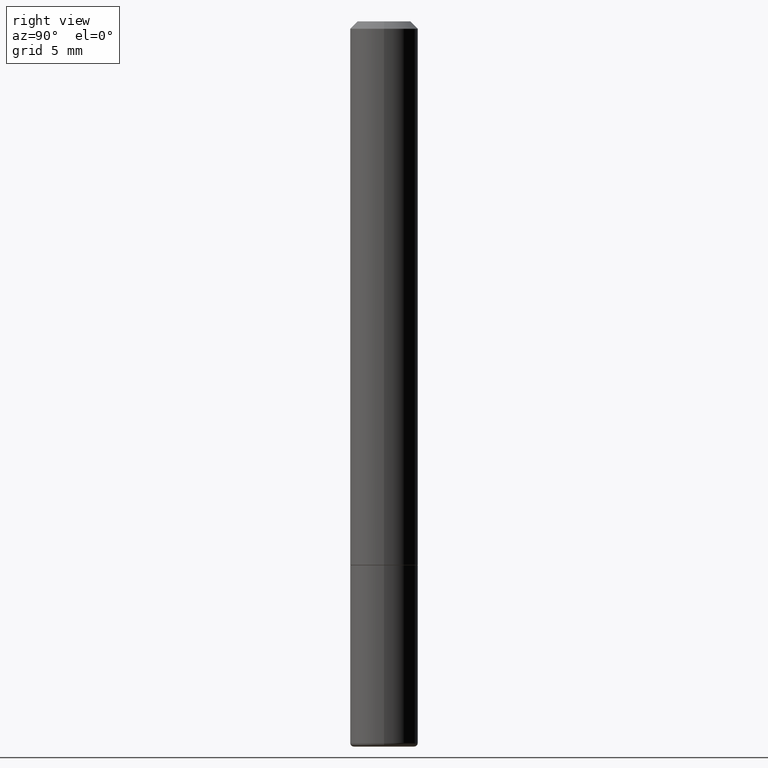
[diagram: clean part render]
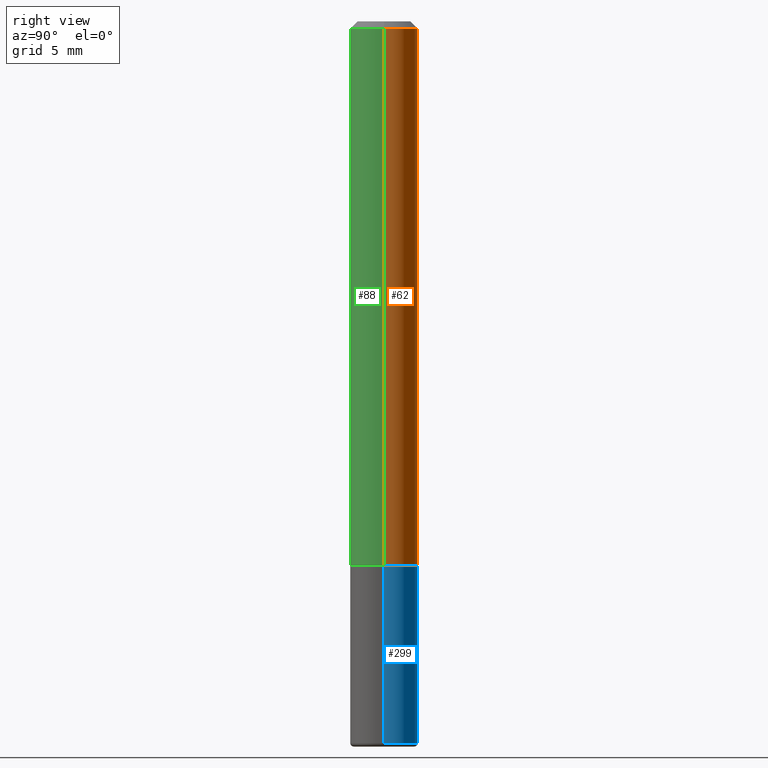
[diagram: same view with three faces highlighted in distinct colors, each labeled with its STEP entity id]
A machine part, right view with three faces highlighted in distinct colors.
Their STEP definitions:

[orange] entity #62 — the highlighted cylindrical surface (edge-blend (fillet) strip) has radius 2.3813 mm, axis along (-0, 0, 1).
#8 = VECTOR ( 'NONE', #153, 39.37007874015748143 ) ;
#15 = CARTESIAN_POINT ( 'NONE',  ( 0.09375000000000020817, -5.888383277958964251E-15, -1.498999999999999666 ) ) ;
#20 = DIRECTION ( 'NONE',  ( 1.000000000000000000, -6.982962677686265922E-15, 4.876176775795935793E-29 ) ) ;
#28 = LINE ( 'NONE', #354, #8 ) ;
#35 = CARTESIAN_POINT ( 'NONE',  ( -0.09375000000000001388, 5.848231242562245017E-16, -0.02000000000000001776 ) ) ;
#44 = CYLINDRICAL_SURFACE ( 'NONE', #286, 0.09375000000000011102 ) ;
#46 = AXIS2_PLACEMENT_3D ( 'NONE', #204, #304, #271 ) ;
#62 = ADVANCED_FACE ( 'NONE', ( #145 ), #44, .T. ) ;
#68 = VECTOR ( 'NONE', #99, 39.37007874015748143 ) ;
#71 = DIRECTION ( 'NONE',  ( 1.000000000000000000, -6.982962677686268288E-15, 0.000000000000000000 ) ) ;
#93 = VERTEX_POINT ( 'NONE', #15 ) ;
#99 = DIRECTION ( 'NONE',  ( -2.445468806185136877E-29, 3.491481338843145188E-15, 1.000000000000000000 ) ) ;
#107 = LINE ( 'NONE', #290, #68 ) ;
#128 = VERTEX_POINT ( 'NONE', #209 ) ;
#131 = ORIENTED_EDGE ( 'NONE', *, *, #364, .T. ) ;
#145 = FACE_OUTER_BOUND ( 'NONE', #330, .T. ) ;
#153 = DIRECTION ( 'NONE',  ( -2.445468806185136877E-29, 3.491481338843145188E-15, 1.000000000000000000 ) ) ;
#157 = ORIENTED_EDGE ( 'NONE', *, *, #413, .F. ) ;
#162 = CIRCLE ( 'NONE', #46, 0.09375000000000001388 ) ;
#203 = VERTEX_POINT ( 'NONE', #35 ) ;
#204 = CARTESIAN_POINT ( 'NONE',  ( 4.890937612370276662E-31, -6.982962677686296539E-17, -0.02000000000000001776 ) ) ;
#209 = CARTESIAN_POINT ( 'NONE',  ( 0.09375000000000001388, -7.130013140679441850E-16, -0.02000000000000001776 ) ) ;
#226 = EDGE_CURVE ( 'NONE', #93, #128, #107, .T. ) ;
#239 = CIRCLE ( 'NONE', #311, 0.09375000000000020817 ) ;
#264 = ORIENTED_EDGE ( 'NONE', *, *, #283, .T. ) ;
#271 = DIRECTION ( 'NONE',  ( 1.000000000000000000, -6.982962677686265922E-15, 0.000000000000000000 ) ) ;
#274 = DIRECTION ( 'NONE',  ( -2.445468806185136597E-29, 3.491481338843145583E-15, 1.000000000000000000 ) ) ;
#283 = EDGE_CURVE ( 'NONE', #412, #203, #28, .T. ) ;
#286 = AXIS2_PLACEMENT_3D ( 'NONE', #318, #274, #20 ) ;
#290 = CARTESIAN_POINT ( 'NONE',  ( 0.09375000000000011102, -6.546527510330881944E-16, 4.571415727308695411E-30 ) ) ;
#304 = DIRECTION ( 'NONE',  ( -2.445468806185136597E-29, 3.491481338843145583E-15, 1.000000000000000000 ) ) ;
#311 = AXIS2_PLACEMENT_3D ( 'NONE', #331, #333, #71 ) ;
#318 = CARTESIAN_POINT ( 'NONE',  ( 0.000000000000000000, 0.000000000000000000, 0.000000000000000000 ) ) ;
#321 = ORIENTED_EDGE ( 'NONE', *, *, #226, .F. ) ;
#329 = CARTESIAN_POINT ( 'NONE',  ( -0.09375000000000020817, -1.985646262076270971E-15, -1.498999999999999666 ) ) ;
#330 = EDGE_LOOP ( 'NONE', ( #131, #264, #157, #321 ) ) ;
#331 = CARTESIAN_POINT ( 'NONE',  ( 3.665757740471518732E-29, -5.233730526925875170E-15, -1.498999999999999666 ) ) ;
#333 = DIRECTION ( 'NONE',  ( -2.445468806185136597E-29, 3.491481338843145583E-15, 1.000000000000000000 ) ) ;
#354 = CARTESIAN_POINT ( 'NONE',  ( -0.09375000000000011102, 6.661338147750947131E-16, -4.611501647113979600E-30 ) ) ;
#364 = EDGE_CURVE ( 'NONE', #93, #412, #239, .T. ) ;
#412 = VERTEX_POINT ( 'NONE', #329 ) ;
#413 = EDGE_CURVE ( 'NONE', #128, #203, #162, .T. ) ;

[blue] entity #299 — the highlighted cylindrical surface (edge-blend (fillet) strip) has radius 2.3813 mm, axis along (-0, 0, 1).
#9 = CARTESIAN_POINT ( 'NONE',  ( 0.09375000000000002776, -6.546527510330876027E-16, 4.571415727308691207E-30 ) ) ;
#18 = AXIS2_PLACEMENT_3D ( 'NONE', #383, #350, #219 ) ;
#63 = VERTEX_POINT ( 'NONE', #101 ) ;
#70 = CARTESIAN_POINT ( 'NONE',  ( 3.668203209277704335E-29, -5.237222008264717388E-15, -1.499999999999999778 ) ) ;
#89 = ORIENTED_EDGE ( 'NONE', *, *, #399, .F. ) ;
#101 = CARTESIAN_POINT ( 'NONE',  ( 0.09374999999999998612, -7.602700615330948598E-15, -1.989999999999999991 ) ) ;
#111 = CIRCLE ( 'NONE', #358, 0.09375000000000001388 ) ;
#119 = ORIENTED_EDGE ( 'NONE', *, *, #305, .T. ) ;
#122 = EDGE_CURVE ( 'NONE', #63, #237, #294, .T. ) ;
#126 = VECTOR ( 'NONE', #186, 39.37007874015748143 ) ;
#137 = EDGE_CURVE ( 'NONE', #352, #298, #111, .T. ) ;
#148 = EDGE_LOOP ( 'NONE', ( #160, #119, #199, #89 ) ) ;
#150 = FACE_OUTER_BOUND ( 'NONE', #148, .T. ) ;
#152 = LINE ( 'NONE', #381, #126 ) ;
#155 = AXIS2_PLACEMENT_3D ( 'NONE', #347, #242, #370 ) ;
#160 = ORIENTED_EDGE ( 'NONE', *, *, #122, .T. ) ;
#186 = DIRECTION ( 'NONE',  ( -2.445468806185136877E-29, 3.491481338843145188E-15, 1.000000000000000000 ) ) ;
#193 = CARTESIAN_POINT ( 'NONE',  ( -0.09375000000000001388, -5.426501121506194922E-15, -1.499999999999999778 ) ) ;
#199 = ORIENTED_EDGE ( 'NONE', *, *, #137, .F. ) ;
#219 = DIRECTION ( 'NONE',  ( 1.000000000000000000, -6.982962677686265922E-15, 4.876176775795935793E-29 ) ) ;
#235 = DIRECTION ( 'NONE',  ( -2.445468806185136877E-29, 3.491481338843145188E-15, 1.000000000000000000 ) ) ;
#237 = VERTEX_POINT ( 'NONE', #402 ) ;
#242 = DIRECTION ( 'NONE',  ( -2.445468806185136597E-29, 3.491481338843145583E-15, 1.000000000000000000 ) ) ;
#252 = CARTESIAN_POINT ( 'NONE',  ( 0.09375000000000001388, -5.891874759297804892E-15, -1.499999999999999778 ) ) ;
#268 = CYLINDRICAL_SURFACE ( 'NONE', #18, 0.09375000000000002776 ) ;
#288 = VECTOR ( 'NONE', #235, 39.37007874015748143 ) ;
#294 = CIRCLE ( 'NONE', #155, 0.09375000000000002776 ) ;
#298 = VERTEX_POINT ( 'NONE', #193 ) ;
#299 = ADVANCED_FACE ( 'NONE', ( #150 ), #268, .T. ) ;
#305 = EDGE_CURVE ( 'NONE', #237, #298, #152, .T. ) ;
#308 = DIRECTION ( 'NONE',  ( 1.000000000000000000, -6.982962677686261189E-15, 0.000000000000000000 ) ) ;
#336 = DIRECTION ( 'NONE',  ( -2.445468806185136597E-29, 3.491481338843145583E-15, 1.000000000000000000 ) ) ;
#347 = CARTESIAN_POINT ( 'NONE',  ( 4.866482924308422209E-29, -6.948047864297860305E-15, -1.989999999999999991 ) ) ;
#350 = DIRECTION ( 'NONE',  ( -2.445468806185136597E-29, 3.491481338843145583E-15, 1.000000000000000000 ) ) ;
#352 = VERTEX_POINT ( 'NONE', #252 ) ;
#358 = AXIS2_PLACEMENT_3D ( 'NONE', #70, #336, #308 ) ;
#370 = DIRECTION ( 'NONE',  ( 1.000000000000000000, -6.982962677686270655E-15, 0.000000000000000000 ) ) ;
#381 = CARTESIAN_POINT ( 'NONE',  ( -0.09375000000000002776, 6.661338147750941215E-16, -4.611501647113975397E-30 ) ) ;
#383 = CARTESIAN_POINT ( 'NONE',  ( 0.000000000000000000, 0.000000000000000000, 0.000000000000000000 ) ) ;
#399 = EDGE_CURVE ( 'NONE', #63, #352, #406, .T. ) ;
#402 = CARTESIAN_POINT ( 'NONE',  ( -0.09374999999999998612, -6.281914049522767170E-15, -1.989999999999999991 ) ) ;
#406 = LINE ( 'NONE', #9, #288 ) ;

[green] entity #88 — the highlighted cylindrical surface (edge-blend (fillet) strip) has radius 2.3813 mm, axis along (-0, 0, 1).
#1 = AXIS2_PLACEMENT_3D ( 'NONE', #410, #210, #405 ) ;
#7 = ORIENTED_EDGE ( 'NONE', *, *, #283, .F. ) ;
#8 = VECTOR ( 'NONE', #153, 39.37007874015748143 ) ;
#15 = CARTESIAN_POINT ( 'NONE',  ( 0.09375000000000020817, -5.888383277958964251E-15, -1.498999999999999666 ) ) ;
#24 = CIRCLE ( 'NONE', #56, 0.09375000000000001388 ) ;
#28 = LINE ( 'NONE', #354, #8 ) ;
#31 = EDGE_CURVE ( 'NONE', #203, #128, #24, .T. ) ;
#35 = CARTESIAN_POINT ( 'NONE',  ( -0.09375000000000001388, 5.848231242562245017E-16, -0.02000000000000001776 ) ) ;
#40 = DIRECTION ( 'NONE',  ( -2.445468806185136597E-29, 3.491481338843145583E-15, 1.000000000000000000 ) ) ;
#56 = AXIS2_PLACEMENT_3D ( 'NONE', #332, #40, #163 ) ;
#68 = VECTOR ( 'NONE', #99, 39.37007874015748143 ) ;
#76 = CARTESIAN_POINT ( 'NONE',  ( 3.665757740471518732E-29, -5.233730526925875170E-15, -1.498999999999999666 ) ) ;
#88 = ADVANCED_FACE ( 'NONE', ( #316 ), #141, .T. ) ;
#93 = VERTEX_POINT ( 'NONE', #15 ) ;
#99 = DIRECTION ( 'NONE',  ( -2.445468806185136877E-29, 3.491481338843145188E-15, 1.000000000000000000 ) ) ;
#107 = LINE ( 'NONE', #290, #68 ) ;
#128 = VERTEX_POINT ( 'NONE', #209 ) ;
#141 = CYLINDRICAL_SURFACE ( 'NONE', #1, 0.09375000000000011102 ) ;
#153 = DIRECTION ( 'NONE',  ( -2.445468806185136877E-29, 3.491481338843145188E-15, 1.000000000000000000 ) ) ;
#163 = DIRECTION ( 'NONE',  ( 1.000000000000000000, -6.982962677686265922E-15, 0.000000000000000000 ) ) ;
#203 = VERTEX_POINT ( 'NONE', #35 ) ;
#209 = CARTESIAN_POINT ( 'NONE',  ( 0.09375000000000001388, -7.130013140679441850E-16, -0.02000000000000001776 ) ) ;
#210 = DIRECTION ( 'NONE',  ( -2.445468806185136597E-29, 3.491481338843145583E-15, 1.000000000000000000 ) ) ;
#226 = EDGE_CURVE ( 'NONE', #93, #128, #107, .T. ) ;
#244 = CIRCLE ( 'NONE', #342, 0.09375000000000020817 ) ;
#254 = EDGE_LOOP ( 'NONE', ( #7, #285, #388, #328 ) ) ;
#283 = EDGE_CURVE ( 'NONE', #412, #203, #28, .T. ) ;
#285 = ORIENTED_EDGE ( 'NONE', *, *, #312, .T. ) ;
#290 = CARTESIAN_POINT ( 'NONE',  ( 0.09375000000000011102, -6.546527510330881944E-16, 4.571415727308695411E-30 ) ) ;
#296 = DIRECTION ( 'NONE',  ( -2.445468806185136597E-29, 3.491481338843145583E-15, 1.000000000000000000 ) ) ;
#312 = EDGE_CURVE ( 'NONE', #412, #93, #244, .T. ) ;
#316 = FACE_OUTER_BOUND ( 'NONE', #254, .T. ) ;
#328 = ORIENTED_EDGE ( 'NONE', *, *, #31, .F. ) ;
#329 = CARTESIAN_POINT ( 'NONE',  ( -0.09375000000000020817, -1.985646262076270971E-15, -1.498999999999999666 ) ) ;
#332 = CARTESIAN_POINT ( 'NONE',  ( 4.890937612370276662E-31, -6.982962677686296539E-17, -0.02000000000000001776 ) ) ;
#342 = AXIS2_PLACEMENT_3D ( 'NONE', #76, #296, #389 ) ;
#354 = CARTESIAN_POINT ( 'NONE',  ( -0.09375000000000011102, 6.661338147750947131E-16, -4.611501647113979600E-30 ) ) ;
#388 = ORIENTED_EDGE ( 'NONE', *, *, #226, .T. ) ;
#389 = DIRECTION ( 'NONE',  ( 1.000000000000000000, -6.982962677686268288E-15, 0.000000000000000000 ) ) ;
#405 = DIRECTION ( 'NONE',  ( 1.000000000000000000, -6.982962677686265922E-15, 4.876176775795935793E-29 ) ) ;
#410 = CARTESIAN_POINT ( 'NONE',  ( 0.000000000000000000, 0.000000000000000000, 0.000000000000000000 ) ) ;
#412 = VERTEX_POINT ( 'NONE', #329 ) ;